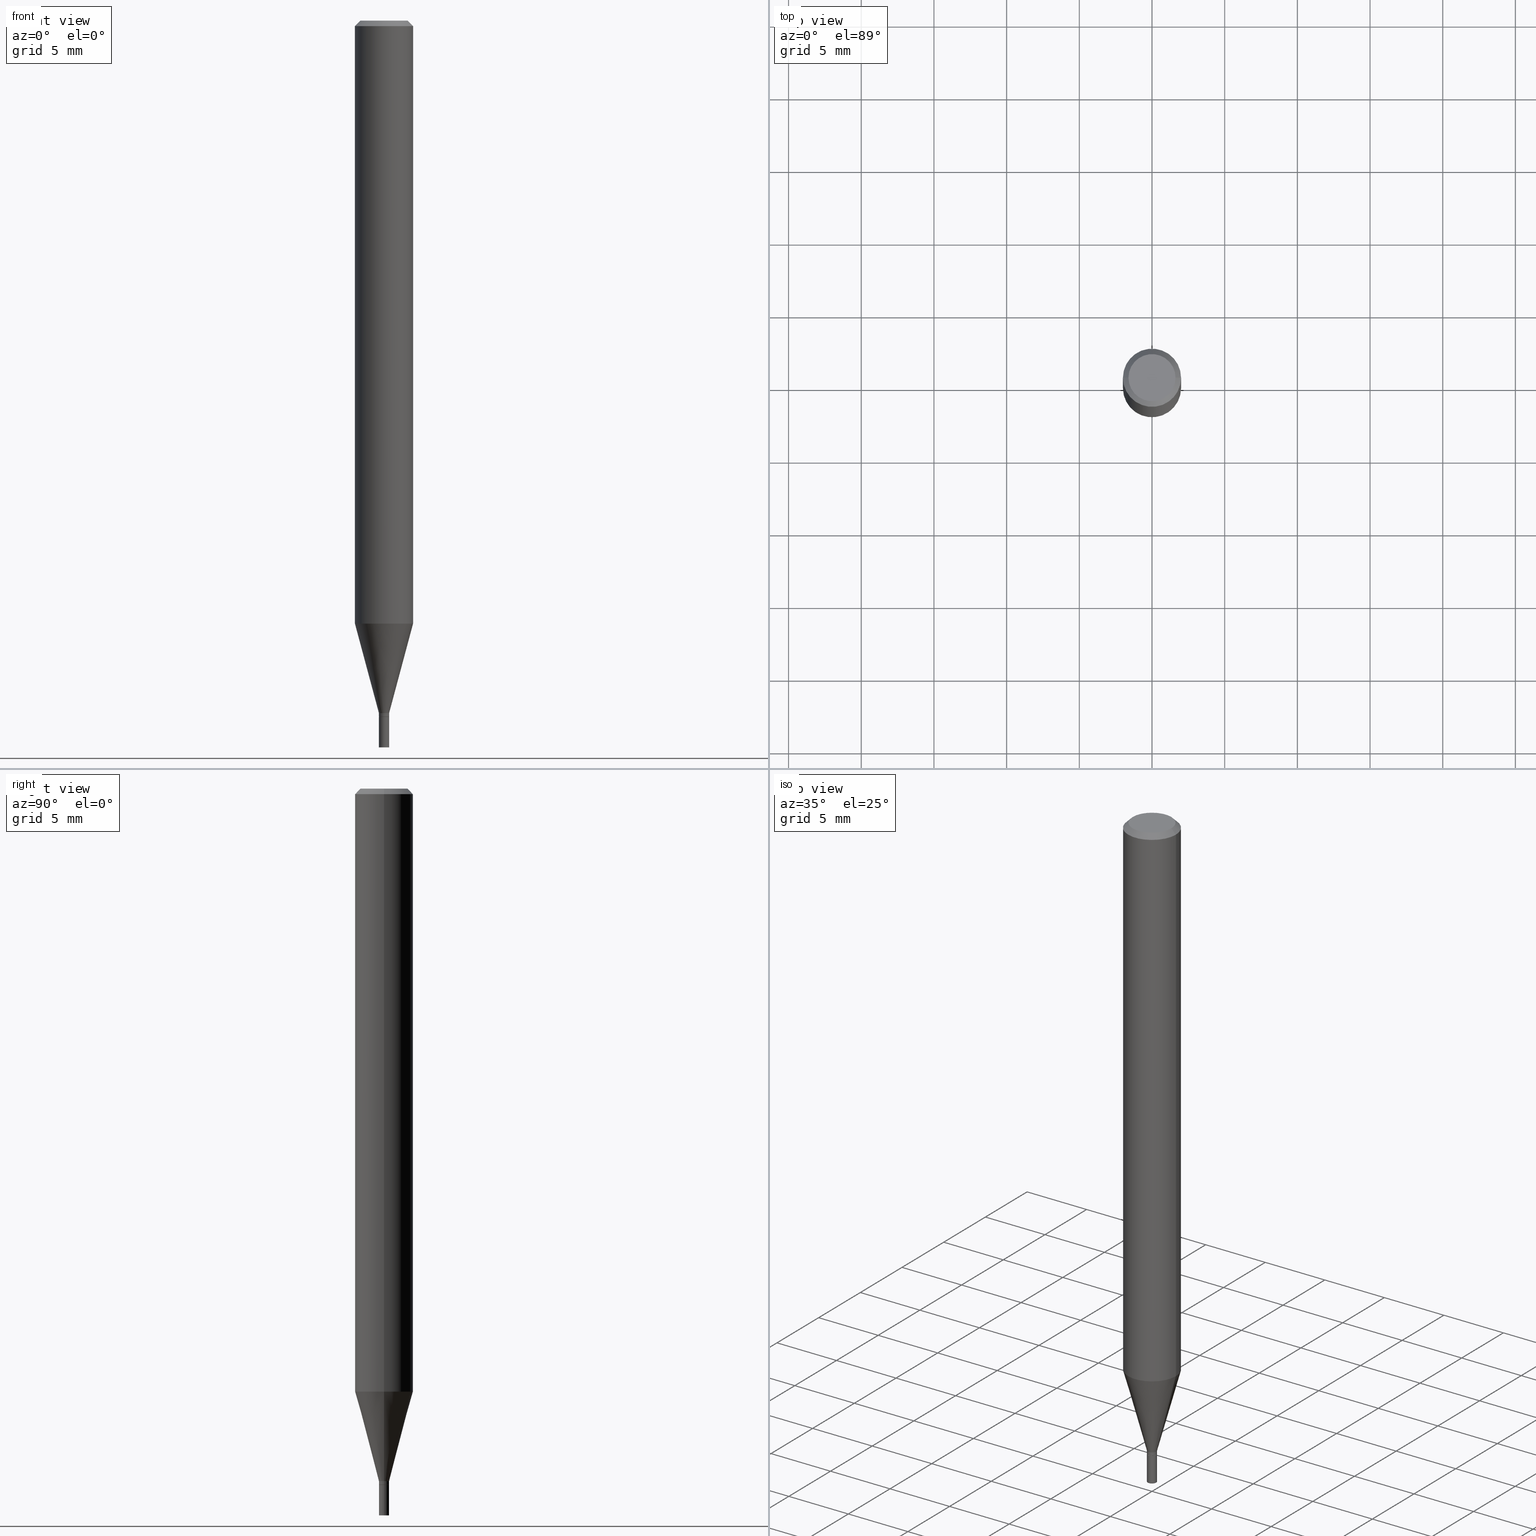
[diagram: canonical four-view strip — front | top / right | iso, engineering-drawing reading convention]
A machine part, canonical four-view strip (front | top / right | iso — engineering-drawing reading convention). The complete STEP part file that produces these views, byte-faithful:
ISO-10303-21;
HEADER;
FILE_DESCRIPTION (( 'STEP AP203' ),
    '1' );
FILE_NAME ('01880.STEP',
    '2024-03-20T02:21:31',
    ( '' ),
    ( '' ),
    'SwSTEP 2.0',
    'SolidWorks 2023',
    '' );
FILE_SCHEMA (( 'CONFIG_CONTROL_DESIGN' ));
ENDSEC;

DATA;
#1 = LINE ( 'NONE', #44, #79 ) ;
#2 = EDGE_CURVE ( 'NONE', #227, #211, #256, .T. ) ;
#3 = DATE_AND_TIME ( #76, #451 ) ;
#4 = CARTESIAN_POINT ( 'NONE',  ( 0.07875000000000000056, -6.251858007389948925E-15, -1.633103300048402540 ) ) ;
#5 = DATE_AND_TIME ( #145, #450 ) ;
#6 = FACE_OUTER_BOUND ( 'NONE', #106, .T. ) ;
#7 = PERSON_AND_ORGANIZATION_ROLE ( 'creator' ) ;
#8 = EDGE_CURVE ( 'NONE', #281, #215, #100, .T. ) ;
#9 = DIRECTION ( 'NONE',  ( -2.445468806185136877E-29, 3.491481338843145188E-15, 1.000000000000000000 ) ) ;
#10 = CONICAL_SURFACE ( 'NONE', #69, 0.01330000000000000106, 0.7853981633974718157 ) ;
#11 = APPROVAL_PERSON_ORGANIZATION ( #37, #298, #292 ) ;
#12 = EDGE_CURVE ( 'NONE', #104, #66, #245, .T. ) ;
#13 = DIRECTION ( 'NONE',  ( 1.000000000000000000, -6.982962677686266711E-15, 0.000000000000000000 ) ) ;
#14 = DIRECTION ( 'NONE',  ( 1.000000000000000000, -6.982962677686274599E-15, 0.000000000000000000 ) ) ;
#15 = CARTESIAN_POINT ( 'NONE',  ( 0.06375000000000000111, -5.149965923825455224E-16, -1.739639682307599153E-16 ) ) ;
#16 = CIRCLE ( 'NONE', #31, 0.01379999999999999977 ) ;
#17 = FACE_OUTER_BOUND ( 'NONE', #320, .T. ) ;
#18 = CARTESIAN_POINT ( 'NONE',  ( 0.01380000000000019753, -9.636488495207185342E-17, 6.729123950598487607E-31 ) ) ;
#19 = EDGE_CURVE ( 'NONE', #68, #347, #266, .T. ) ;
#20 = DIRECTION ( 'NONE',  ( -2.438088387897960049E-29, 3.491481338843145188E-15, 1.000000000000000000 ) ) ;
#21 = AXIS2_PLACEMENT_3D ( 'NONE', #143, #38, #291 ) ;
#22 = DIRECTION ( 'NONE',  ( 0.7071067811865642261, -2.468850131082431399E-15, 0.7071067811865309194 ) ) ;
#23 = AXIS2_PLACEMENT_3D ( 'NONE', #65, #67, #420 ) ;
#24 = ORIENTED_EDGE ( 'NONE', *, *, #344, .F. ) ;
#25 = DIRECTION ( 'NONE',  ( 1.000000000000000000, -6.982962677686234367E-15, 0.000000000000000000 ) ) ;
#26 = ORIENTED_EDGE ( 'NONE', *, *, #444, .T. ) ;
#27 = CARTESIAN_POINT ( 'NONE',  ( 3.668203209277705088E-31, -5.237222008264718399E-17, -0.01499999999999999944 ) ) ;
#28 = VERTEX_POINT ( 'NONE', #399 ) ;
#29 = PRODUCT_DEFINITION ( 'UNKNOWN', '', #367, #462 ) ;
#30 = CARTESIAN_POINT ( 'NONE',  ( 4.611665074703931819E-29, -6.584235508790405551E-15, -1.885800000000000365 ) ) ;
#31 = AXIS2_PLACEMENT_3D ( 'NONE', #163, #303, #448 ) ;
#32 = ORIENTED_EDGE ( 'NONE', *, *, #222, .T. ) ;
#33 = PERSON_AND_ORGANIZATION ( #287, #195 ) ;
#34 = ORIENTED_EDGE ( 'NONE', *, *, #80, .T. ) ;
#35 = DATE_AND_TIME ( #324, #193 ) ;
#36 = DIRECTION ( 'NONE',  ( 1.000000000000000000, -6.982962677686261977E-15, 0.000000000000000000 ) ) ;
#37 = PERSON_AND_ORGANIZATION ( #287, #195 ) ;
#38 = DIRECTION ( 'NONE',  ( -2.445468806185136597E-29, 3.491481338843145583E-15, 1.000000000000000000 ) ) ;
#39 = CIRCLE ( 'NONE', #296, 0.01380000000000019926 ) ;
#40 = PERSON_AND_ORGANIZATION_ROLE ( 'creator' ) ;
#41 = DIRECTION ( 'NONE',  ( 1.000000000000000000, -6.982962677686267499E-15, 4.876176775795936353E-29 ) ) ;
#42 = VERTEX_POINT ( 'NONE', #111 ) ;
#43 = PERSON_AND_ORGANIZATION_ROLE ( 'design_owner' ) ;
#44 = CARTESIAN_POINT ( 'NONE',  ( -0.01379999999999999977, 9.805489753489382399E-17, -6.788130424551770621E-31 ) ) ;
#45 = DIRECTION ( 'NONE',  ( -2.445468806185136597E-29, 3.491481338843145583E-15, 1.000000000000000000 ) ) ;
#46 = SECURITY_CLASSIFICATION ( '', '', #388 ) ;
#47 = CC_DESIGN_APPROVAL ( #402, ( #29 ) ) ;
#48 = ADVANCED_FACE ( 'NONE', ( #6 ), #365, .F. ) ;
#49 = DIRECTION ( 'NONE',  ( 2.445468806185136597E-29, -3.491481338843145583E-15, -1.000000000000000000 ) ) ;
#50 = DIRECTION ( 'NONE',  ( -2.445468806185136597E-29, 3.491481338843145583E-15, 1.000000000000000000 ) ) ;
#51 = CC_DESIGN_PERSON_AND_ORGANIZATION_ASSIGNMENT ( #33, #108, ( #46 ) ) ;
#52 = DIRECTION ( 'NONE',  ( -2.445468806185136597E-29, 3.491481338843145583E-15, 1.000000000000000000 ) ) ;
#53 = CC_DESIGN_SECURITY_CLASSIFICATION ( #46, ( #367 ) ) ;
#54 = EDGE_CURVE ( 'NONE', #438, #141, #1, .T. ) ;
#55 = CONICAL_SURFACE ( 'NONE', #200, 0.01330000000000000106, 0.7853981633974718157 ) ;
#56 = CARTESIAN_POINT ( 'NONE',  ( 4.586476746000223920E-29, -6.548273251000319422E-15, -1.875499999999999945 ) ) ;
#57 = PRODUCT ( '01880', '01880', '', ( #354 ) ) ;
#58 = DIRECTION ( 'NONE',  ( -2.445468806185136597E-29, 3.491481338843145583E-15, 1.000000000000000000 ) ) ;
#59 = ORIENTED_EDGE ( 'NONE', *, *, #97, .T. ) ;
#60 = DIRECTION ( 'NONE',  ( 1.000000000000000000, -6.982962677686266711E-15, 0.000000000000000000 ) ) ;
#61 = EDGE_LOOP ( 'NONE', ( #457, #258, #349, #119 ) ) ;
#62 = VECTOR ( 'NONE', #229, 39.37007874015748143 ) ;
#63 = EDGE_CURVE ( 'NONE', #251, #42, #437, .T. ) ;
#64 = EDGE_LOOP ( 'NONE', ( #418, #277 ) ) ;
#65 = CARTESIAN_POINT ( 'NONE',  ( 4.586476746000223920E-29, -6.548273251000319422E-15, -1.875499999999999945 ) ) ;
#66 = VERTEX_POINT ( 'NONE', #431 ) ;
#67 = DIRECTION ( 'NONE',  ( -2.445468806185136597E-29, 3.491481338843145583E-15, 1.000000000000000000 ) ) ;
#68 = VERTEX_POINT ( 'NONE', #4 ) ;
#69 = AXIS2_PLACEMENT_3D ( 'NONE', #243, #348, #380 ) ;
#70 = PERSON_AND_ORGANIZATION ( #287, #195 ) ;
#71 = LOCAL_TIME ( 22, 21, 31.00000000000000000, #432 ) ;
#72 = ORIENTED_EDGE ( 'NONE', *, *, #222, .F. ) ;
#73 = CIRCLE ( 'NONE', #330, 0.07875000000000000056 ) ;
#74 = CARTESIAN_POINT ( 'NONE',  ( 0.000000000000000000, 0.000000000000000000, 0.000000000000000000 ) ) ;
#75 = CARTESIAN_POINT ( 'NONE',  ( 0.01379999999999999977, -9.636488495207048524E-17, 6.729123950598392144E-31 ) ) ;
#76 = CALENDAR_DATE ( 2024, 19, 3 ) ;
#77 = CARTESIAN_POINT ( 'NONE',  ( 4.451638707024993845E-16, 0.06375000000000000111, -3.095639194666321891E-16 ) ) ;
#78 = CYLINDRICAL_SURFACE ( 'NONE', #419, 0.01380000000000019753 ) ;
#79 = VECTOR ( 'NONE', #9, 39.37007874015748143 ) ;
#80 = EDGE_CURVE ( 'NONE', #347, #68, #160, .T. ) ;
#81 = CARTESIAN_POINT ( 'NONE',  ( -0.07875000000000000056, 5.595524044110789003E-16, -3.873661383575737792E-30 ) ) ;
#82 = ADVANCED_BREP_SHAPE_REPRESENTATION ( '01880', ( #129, #443, #110 ), #130 ) ;
#83 = ORIENTED_EDGE ( 'NONE', *, *, #213, .F. ) ;
#84 = CARTESIAN_POINT ( 'NONE',  ( 3.668203209277705088E-31, -5.237222008264718399E-17, -0.01499999999999999944 ) ) ;
#85 = CC_DESIGN_PERSON_AND_ORGANIZATION_ASSIGNMENT ( #284, #40, ( #367 ) ) ;
#86 = CARTESIAN_POINT ( 'NONE',  ( -0.01380000000000019926, -6.450218353465424562E-15, -1.875499999999999945 ) ) ;
#87 = CYLINDRICAL_SURFACE ( 'NONE', #401, 0.01380000000000019753 ) ;
#88 = ORIENTED_EDGE ( 'NONE', *, *, #63, .T. ) ;
#89 = DIRECTION ( 'NONE',  ( 1.000000000000000000, -6.982962677686234367E-15, 0.000000000000000000 ) ) ;
#90 = ADVANCED_FACE ( 'NONE', ( #185 ), #327, .T. ) ;
#91 = AXIS2_PLACEMENT_3D ( 'NONE', #334, #441, #89 ) ;
#92 = AXIS2_PLACEMENT_3D ( 'NONE', #210, #58, #25 ) ;
#93 = LINE ( 'NONE', #331, #226 ) ;
#94 = CC_DESIGN_PERSON_AND_ORGANIZATION_ASSIGNMENT ( #394, #154, ( #367 ) ) ;
#95 = FACE_OUTER_BOUND ( 'NONE', #285, .T. ) ;
#96 = VERTEX_POINT ( 'NONE', #435 ) ;
#97 = EDGE_CURVE ( 'NONE', #251, #96, #433, .T. ) ;
#98 = CARTESIAN_POINT ( 'NONE',  ( 3.668203209277705088E-31, -5.237222008264718399E-17, -0.01499999999999999944 ) ) ;
#99 = ORIENTED_EDGE ( 'NONE', *, *, #192, .F. ) ;
#100 = CIRCLE ( 'NONE', #175, 0.06375000000000000111 ) ;
#101 = CARTESIAN_POINT ( 'NONE',  ( 0.01330000000000000106, -6.677108912403632696E-15, -1.885800000000000365 ) ) ;
#102 = ORIENTED_EDGE ( 'NONE', *, *, #192, .T. ) ;
#103 = CARTESIAN_POINT ( 'NONE',  ( -0.07875000000000000056, -5.142397292111077566E-15, -1.633103300048402540 ) ) ;
#104 = VERTEX_POINT ( 'NONE', #114 ) ;
#105 = DIRECTION ( 'NONE',  ( -2.445468806185136597E-29, 3.491481338843145583E-15, 1.000000000000000000 ) ) ;
#106 = EDGE_LOOP ( 'NONE', ( #316, #249 ) ) ;
#107 = ADVANCED_FACE ( 'NONE', ( #395 ), #78, .T. ) ;
#108 = PERSON_AND_ORGANIZATION_ROLE ( 'classification_officer' ) ;
#109 = DIRECTION ( 'NONE',  ( 2.438088387897960049E-29, -3.491481338843145188E-15, -1.000000000000000000 ) ) ;
#110 = AXIS2_PLACEMENT_3D ( 'NONE', #74, #228, #321 ) ;
#111 = CARTESIAN_POINT ( 'NONE',  ( 0.01380000000000019753, -6.678854653073054988E-15, -1.885300000000000198 ) ) ;
#112 = CALENDAR_DATE ( 2024, 19, 3 ) ;
#113 = EDGE_CURVE ( 'NONE', #347, #104, #262, .T. ) ;
#114 = CARTESIAN_POINT ( 'NONE',  ( -0.07875000000000000056, -2.317608553891323119E-15, -0.01499999999999999944 ) ) ;
#115 = COORDINATED_UNIVERSAL_TIME_OFFSET ( 5, 0, .BEHIND. ) ;
#116 = DIRECTION ( 'NONE',  ( 1.000000000000000000, -6.982962677686265922E-15, 4.876176775795935793E-29 ) ) ;
#117 = VECTOR ( 'NONE', #268, 39.37007874015748143 ) ;
#118 = CONICAL_SURFACE ( 'NONE', #23, 0.01380000000000019926, 0.2617993877991499074 ) ;
#119 = ORIENTED_EDGE ( 'NONE', *, *, #444, .F. ) ;
#120 = CARTESIAN_POINT ( 'NONE',  ( 4.586476746000223920E-29, -6.548273251000319422E-15, -1.875499999999999945 ) ) ;
#121 = EDGE_CURVE ( 'NONE', #42, #386, #191, .T. ) ;
#122 = FACE_OUTER_BOUND ( 'NONE', #422, .T. ) ;
#123 = CARTESIAN_POINT ( 'NONE',  ( -0.01380000000000019753, -6.484434870586088399E-15, -1.885300000000000198 ) ) ;
#124 = SHAPE_DEFINITION_REPRESENTATION ( #126, #82 ) ;
#125 = CARTESIAN_POINT ( 'NONE',  ( 4.611665074703931819E-29, -6.584235508790405551E-15, -1.885800000000000365 ) ) ;
#126 = PRODUCT_DEFINITION_SHAPE ( 'NONE', 'NONE',  #29 ) ;
#127 = FACE_OUTER_BOUND ( 'NONE', #464, .T. ) ;
#128 = VECTOR ( 'NONE', #153, 39.37007874015748143 ) ;
#129 = MANIFOLD_SOLID_BREP ( 'Body-Move/Copy2[1]', #317 ) ;
#130 =( GEOMETRIC_REPRESENTATION_CONTEXT ( 3 ) GLOBAL_UNCERTAINTY_ASSIGNED_CONTEXT ( ( #425 ) ) GLOBAL_UNIT_ASSIGNED_CONTEXT ( ( #180, #430, #259 ) ) REPRESENTATION_CONTEXT ( 'NONE', 'WORKASPACE' ) );
#131 = DIRECTION ( 'NONE',  ( -2.445468806185136597E-29, 3.491481338843145583E-15, 1.000000000000000000 ) ) ;
#132 = ORIENTED_EDGE ( 'NONE', *, *, #183, .T. ) ;
#133 = DIRECTION ( 'NONE',  ( -2.445468806185136597E-29, 3.491481338843145583E-15, 1.000000000000000000 ) ) ;
#134 = ORIENTED_EDGE ( 'NONE', *, *, #19, .F. ) ;
#135 = CARTESIAN_POINT ( 'NONE',  ( 0.000000000000000000, 0.000000000000000000, 0.000000000000000000 ) ) ;
#136 = ORIENTED_EDGE ( 'NONE', *, *, #183, .F. ) ;
#137 = VECTOR ( 'NONE', #164, 39.37007874015748854 ) ;
#138 = FACE_OUTER_BOUND ( 'NONE', #428, .T. ) ;
#139 = ORIENTED_EDGE ( 'NONE', *, *, #344, .T. ) ;
#140 = PLANE ( 'NONE',  #374 ) ;
#141 = VERTEX_POINT ( 'NONE', #232 ) ;
#142 = PERSON_AND_ORGANIZATION ( #287, #195 ) ;
#143 = CARTESIAN_POINT ( 'NONE',  ( 4.610442340300838457E-29, -6.582489768120983258E-15, -1.885300000000000198 ) ) ;
#144 = AXIS2_PLACEMENT_3D ( 'NONE', #264, #156, #13 ) ;
#145 = CALENDAR_DATE ( 2024, 19, 3 ) ;
#146 = DIRECTION ( 'NONE',  ( -2.445468806185136597E-29, 3.491481338843145583E-15, 1.000000000000000000 ) ) ;
#147 = CIRCLE ( 'NONE', #92, 0.01379999999999999977 ) ;
#148 = EDGE_CURVE ( 'NONE', #438, #227, #278, .T. ) ;
#149 = APPROVAL_STATUS ( 'not_yet_approved' ) ;
#150 = CARTESIAN_POINT ( 'NONE',  ( 0.000000000000000000, 0.000000000000000000, 0.000000000000000000 ) ) ;
#151 = CC_DESIGN_PERSON_AND_ORGANIZATION_ASSIGNMENT ( #70, #7, ( #29 ) ) ;
#152 = APPLICATION_PROTOCOL_DEFINITION ( 'international standard', 'config_control_design', 1994, #219 ) ;
#153 = DIRECTION ( 'NONE',  ( -2.445468806185136877E-29, 3.491481338843145188E-15, 1.000000000000000000 ) ) ;
#154 = PERSON_AND_ORGANIZATION_ROLE ( 'design_supplier' ) ;
#155 = DIRECTION ( 'NONE',  ( 1.000000000000000000, -6.982962677686265922E-15, 4.852736867747365646E-29 ) ) ;
#156 = DIRECTION ( 'NONE',  ( -2.445468806185136597E-29, 3.491481338843145583E-15, 1.000000000000000000 ) ) ;
#157 = LINE ( 'NONE', #86, #137 ) ;
#158 = PRODUCT_RELATED_PRODUCT_CATEGORY ( 'detail', '', ( #57 ) ) ;
#159 = CARTESIAN_POINT ( 'NONE',  ( 0.01379999999999999977, -6.969345900464801860E-15, -1.968500000000000139 ) ) ;
#160 = CIRCLE ( 'NONE', #288, 0.07875000000000000056 ) ;
#161 = EDGE_CURVE ( 'NONE', #215, #66, #93, .T. ) ;
#162 = EDGE_CURVE ( 'NONE', #227, #438, #16, .T. ) ;
#163 = CARTESIAN_POINT ( 'NONE',  ( 4.813905344975441835E-29, -6.872981015512731707E-15, -1.968500000000000139 ) ) ;
#164 = DIRECTION ( 'NONE',  ( -0.2588190451025211836, 5.211531920934547886E-15, 0.9659258262890679791 ) ) ;
#165 = LINE ( 'NONE', #272, #261 ) ;
#166 = APPLICATION_CONTEXT ( 'configuration controlled 3d designs of mechanical parts and assemblies' ) ;
#167 = VECTOR ( 'NONE', #333, 39.37007874015748143 ) ;
#168 = APPROVAL_PERSON_ORGANIZATION ( #465, #314, #295 ) ;
#169 = CARTESIAN_POINT ( 'NONE',  ( 4.586476746000223920E-29, -6.548273251000319422E-15, -1.875499999999999945 ) ) ;
#170 = EDGE_LOOP ( 'NONE', ( #32, #59, #188, #357 ) ) ;
#171 =( LENGTH_UNIT ( ) NAMED_UNIT ( * ) SI_UNIT ( $, .METRE. ) );
#172 = ORIENTED_EDGE ( 'NONE', *, *, #113, .F. ) ;
#173 = DIRECTION ( 'NONE',  ( 2.445468806185136597E-29, -3.491481338843145583E-15, -1.000000000000000000 ) ) ;
#174 = ORIENTED_EDGE ( 'NONE', *, *, #54, .T. ) ;
#175 = AXIS2_PLACEMENT_3D ( 'NONE', #322, #391, #155 ) ;
#176 = EDGE_CURVE ( 'NONE', #386, #96, #39, .T. ) ;
#177 = DIRECTION ( 'NONE',  ( -2.445468806185136597E-29, 3.491481338843145583E-15, 1.000000000000000000 ) ) ;
#178 = ORIENTED_EDGE ( 'NONE', *, *, #436, .F. ) ;
#179 = CC_DESIGN_DATE_AND_TIME_ASSIGNMENT ( #250, #390, ( #29 ) ) ;
#180 =( CONVERSION_BASED_UNIT ( 'INCH', #217 ) LENGTH_UNIT ( ) NAMED_UNIT ( #416 ) );
#181 = ORIENTED_EDGE ( 'NONE', *, *, #213, .T. ) ;
#182 = DIRECTION ( 'NONE',  ( -1.000000000000000000, 6.982962677686265922E-15, -4.876176775795935793E-29 ) ) ;
#183 = EDGE_CURVE ( 'NONE', #211, #141, #336, .T. ) ;
#184 = AXIS2_PLACEMENT_3D ( 'NONE', #77, #109, #182 ) ;
#185 = FACE_OUTER_BOUND ( 'NONE', #61, .T. ) ;
#186 = PERSON_AND_ORGANIZATION ( #287, #195 ) ;
#187 = CARTESIAN_POINT ( 'NONE',  ( 0.000000000000000000, 0.000000000000000000, 0.000000000000000000 ) ) ;
#188 = ORIENTED_EDGE ( 'NONE', *, *, #176, .F. ) ;
#189 = EDGE_CURVE ( 'NONE', #96, #386, #409, .T. ) ;
#190 = APPROVAL_DATE_TIME ( #35, #402 ) ;
#191 = LINE ( 'NONE', #18, #117 ) ;
#192 = EDGE_CURVE ( 'NONE', #28, #323, #366, .T. ) ;
#193 = LOCAL_TIME ( 22, 21, 31.00000000000000000, #254 ) ;
#194 = DIRECTION ( 'NONE',  ( 0.7071067811865516806, -7.319954787623270245E-15, -0.7071067811865433539 ) ) ;
#195 = ORGANIZATION ( 'UNSPECIFIED', 'UNSPECIFIED', '' ) ;
#196 = CARTESIAN_POINT ( 'NONE',  ( 0.07875000000000000056, -5.499083108677934443E-16, 3.839989210939299016E-30 ) ) ;
#197 = DIRECTION ( 'NONE',  ( 1.000000000000000000, -6.982962677686275388E-15, 0.000000000000000000 ) ) ;
#198 = ADVANCED_FACE ( 'NONE', ( #122 ), #87, .T. ) ;
#199 = CARTESIAN_POINT ( 'NONE',  ( 4.813905344975441835E-29, -6.872981015512731707E-15, -1.968500000000000139 ) ) ;
#200 = AXIS2_PLACEMENT_3D ( 'NONE', #125, #373, #338 ) ;
#201 = DIRECTION ( 'NONE',  ( 1.000000000000000000, -6.982962677686274599E-15, 0.000000000000000000 ) ) ;
#202 = DIRECTION ( 'NONE',  ( 1.000000000000000000, -6.982962677686265922E-15, 4.852736867747365646E-29 ) ) ;
#203 = ORIENTED_EDGE ( 'NONE', *, *, #436, .T. ) ;
#204 = DIRECTION ( 'NONE',  ( 1.000000000000000000, -6.982962677686267499E-15, 4.876176775795936353E-29 ) ) ;
#205 = ORIENTED_EDGE ( 'NONE', *, *, #421, .F. ) ;
#206 = CIRCLE ( 'NONE', #342, 0.06375000000000000111 ) ;
#207 = CARTESIAN_POINT ( 'NONE',  ( 4.611665074703931819E-29, -6.584235508790405551E-15, -1.885800000000000365 ) ) ;
#208 = ADVANCED_FACE ( 'NONE', ( #335 ), #404, .T. ) ;
#209 = ORIENTED_EDGE ( 'NONE', *, *, #113, .T. ) ;
#210 = CARTESIAN_POINT ( 'NONE',  ( 4.611665074703931259E-29, -6.584235508790404762E-15, -1.885800000000000143 ) ) ;
#211 = VERTEX_POINT ( 'NONE', #369 ) ;
#212 = EDGE_CURVE ( 'NONE', #68, #66, #240, .T. ) ;
#213 = EDGE_CURVE ( 'NONE', #96, #347, #157, .T. ) ;
#214 = DIRECTION ( 'NONE',  ( 1.000000000000000000, -6.982962677686265922E-15, 4.876176775795935793E-29 ) ) ;
#215 = VERTEX_POINT ( 'NONE', #15 ) ;
#216 = AXIS2_PLACEMENT_3D ( 'NONE', #120, #52, #201 ) ;
#217 = LENGTH_MEASURE_WITH_UNIT ( LENGTH_MEASURE( 0.02539999999999999897 ), #171 );
#218 = ORIENTED_EDGE ( 'NONE', *, *, #387, .T. ) ;
#219 = APPLICATION_CONTEXT ( 'configuration controlled 3d designs of mechanical parts and assemblies' ) ;
#220 = COORDINATED_UNIVERSAL_TIME_OFFSET ( 5, 0, .BEHIND. ) ;
#221 = ADVANCED_FACE ( 'NONE', ( #235 ), #301, .F. ) ;
#222 = EDGE_CURVE ( 'NONE', #42, #251, #427, .T. ) ;
#223 = ORIENTED_EDGE ( 'NONE', *, *, #12, .F. ) ;
#224 = CARTESIAN_POINT ( 'NONE',  ( 3.993703177546373766E-29, -5.701949696522156368E-15, -1.633103300048402540 ) ) ;
#225 = CC_DESIGN_APPROVAL ( #298, ( #46 ) ) ;
#226 = VECTOR ( 'NONE', #194, 39.37007874015748143 ) ;
#227 = VERTEX_POINT ( 'NONE', #159 ) ;
#228 = DIRECTION ( 'NONE',  ( 0.000000000000000000, 0.000000000000000000, 1.000000000000000000 ) ) ;
#229 = DIRECTION ( 'NONE',  ( -2.445468806185136877E-29, 3.491481338843145188E-15, 1.000000000000000000 ) ) ;
#230 = CARTESIAN_POINT ( 'NONE',  ( 3.668203209277705088E-31, -5.237222008264718399E-17, -0.01499999999999999944 ) ) ;
#231 = VECTOR ( 'NONE', #304, 39.37007874015748854 ) ;
#232 = CARTESIAN_POINT ( 'NONE',  ( -0.01379999999999999977, -6.630553364616674953E-15, -1.885800000000000143 ) ) ;
#233 = CLOSED_SHELL ( 'NONE', ( #107, #311, #332, #360, #337, #447, #326, #208, #48, #372, #458, #198 ) ) ;
#234 = AXIS2_PLACEMENT_3D ( 'NONE', #383, #385, #280 ) ;
#235 = FACE_OUTER_BOUND ( 'NONE', #453, .T. ) ;
#236 = CARTESIAN_POINT ( 'NONE',  ( 0.01380000000000019926, -6.644638135952391152E-15, -1.875499999999999945 ) ) ;
#237 = EDGE_LOOP ( 'NONE', ( #99, #24 ) ) ;
#238 = DIRECTION ( 'NONE',  ( -1.000000000000000000, 6.982962677686265922E-15, 0.000000000000000000 ) ) ;
#239 = EDGE_CURVE ( 'NONE', #281, #104, #410, .T. ) ;
#240 = LINE ( 'NONE', #196, #167 ) ;
#241 = CARTESIAN_POINT ( 'NONE',  ( 0.000000000000000000, 0.000000000000000000, 0.000000000000000000 ) ) ;
#242 = ORIENTED_EDGE ( 'NONE', *, *, #421, .T. ) ;
#243 = CARTESIAN_POINT ( 'NONE',  ( 4.611665074703931819E-29, -6.584235508790405551E-15, -1.885800000000000365 ) ) ;
#244 = EDGE_LOOP ( 'NONE', ( #378, #307, #310, #329 ) ) ;
#245 = CIRCLE ( 'NONE', #352, 0.07875000000000000056 ) ;
#246 = CYLINDRICAL_SURFACE ( 'NONE', #461, 0.01379999999999999977 ) ;
#247 = ORIENTED_EDGE ( 'NONE', *, *, #212, .T. ) ;
#248 = CYLINDRICAL_SURFACE ( 'NONE', #270, 0.07875000000000000056 ) ;
#249 = ORIENTED_EDGE ( 'NONE', *, *, #361, .T. ) ;
#250 = DATE_AND_TIME ( #397, #308 ) ;
#251 = VERTEX_POINT ( 'NONE', #123 ) ;
#252 = CC_DESIGN_APPROVAL ( #314, ( #367 ) ) ;
#253 = APPROVAL_PERSON_ORGANIZATION ( #186, #402, #426 ) ;
#254 = COORDINATED_UNIVERSAL_TIME_OFFSET ( 5, 0, .BEHIND. ) ;
#255 = DIRECTION ( 'NONE',  ( 1.000000000000000000, -6.982962677686261977E-15, 0.000000000000000000 ) ) ;
#256 = LINE ( 'NONE', #75, #260 ) ;
#257 = DATE_AND_TIME ( #112, #71 ) ;
#258 = ORIENTED_EDGE ( 'NONE', *, *, #148, .T. ) ;
#259 =( NAMED_UNIT ( * ) SI_UNIT ( $, .STERADIAN. ) SOLID_ANGLE_UNIT ( ) );
#260 = VECTOR ( 'NONE', #325, 39.37007874015748143 ) ;
#261 = VECTOR ( 'NONE', #417, 39.37007874015748143 ) ;
#262 = LINE ( 'NONE', #81, #62 ) ;
#263 = CARTESIAN_POINT ( 'NONE',  ( 3.993703177546373766E-29, -5.701949696522156368E-15, -1.633103300048402540 ) ) ;
#264 = CARTESIAN_POINT ( 'NONE',  ( 4.611665074703931819E-29, -6.584235508790405551E-15, -1.885800000000000365 ) ) ;
#265 = DIRECTION ( 'NONE',  ( -1.000000000000000000, 6.982962677686265922E-15, -4.876176775795935793E-29 ) ) ;
#266 = CIRCLE ( 'NONE', #345, 0.07875000000000000056 ) ;
#267 = DIRECTION ( 'NONE',  ( 2.438088387897960049E-29, -3.491481338843145188E-15, -1.000000000000000000 ) ) ;
#268 = DIRECTION ( 'NONE',  ( -2.445468806185136877E-29, 3.491481338843145188E-15, 1.000000000000000000 ) ) ;
#269 = CARTESIAN_POINT ( 'NONE',  ( 0.000000000000000000, 0.000000000000000000, 0.000000000000000000 ) ) ;
#270 = AXIS2_PLACEMENT_3D ( 'NONE', #135, #312, #319 ) ;
#271 = CIRCLE ( 'NONE', #439, 0.01330000000000000106 ) ;
#272 = CARTESIAN_POINT ( 'NONE',  ( -0.01330000000000000106, -6.489733324934312379E-15, -1.885800000000000365 ) ) ;
#273 = ORIENTED_EDGE ( 'NONE', *, *, #387, .F. ) ;
#274 = DIRECTION ( 'NONE',  ( 1.000000000000000000, -6.982962677686274599E-15, 0.000000000000000000 ) ) ;
#275 = ORIENTED_EDGE ( 'NONE', *, *, #176, .T. ) ;
#276 = DIRECTION ( 'NONE',  ( -2.445468806185136597E-29, 3.491481338843145583E-15, 1.000000000000000000 ) ) ;
#277 = ORIENTED_EDGE ( 'NONE', *, *, #148, .F. ) ;
#278 = CIRCLE ( 'NONE', #382, 0.01379999999999999977 ) ;
#279 = EDGE_CURVE ( 'NONE', #386, #68, #406, .T. ) ;
#280 = DIRECTION ( 'NONE',  ( 1.000000000000000000, -6.982962677686265922E-15, 4.876176775795935232E-29 ) ) ;
#281 = VERTEX_POINT ( 'NONE', #370 ) ;
#282 = DIRECTION ( 'NONE',  ( 1.000000000000000000, -6.982962677686265922E-15, 0.000000000000000000 ) ) ;
#283 = EDGE_LOOP ( 'NONE', ( #205, #139, #203, #413 ) ) ;
#284 = PERSON_AND_ORGANIZATION ( #287, #195 ) ;
#285 = EDGE_LOOP ( 'NONE', ( #363, #209, #273, #415 ) ) ;
#286 = CONICAL_SURFACE ( 'NONE', #318, 0.07875000000000000056, 0.7853981633974541632 ) ;
#287 = PERSON ( 'UNSPECIFIED', 'UNSPECIFIED', 'UNSPECIFIED', ('UNSPECIFIED'), ('UNSPECIFIED'), ('UNSPECIFIED') ) ;
#288 = AXIS2_PLACEMENT_3D ( 'NONE', #224, #359, #255 ) ;
#289 = VECTOR ( 'NONE', #445, 39.37007874015748143 ) ;
#290 = APPROVAL_STATUS ( 'not_yet_approved' ) ;
#291 = DIRECTION ( 'NONE',  ( 1.000000000000000000, -6.982962677686275388E-15, 0.000000000000000000 ) ) ;
#292 = APPROVAL_ROLE ( '' ) ;
#293 = DIRECTION ( 'NONE',  ( -2.445468806185136597E-29, 3.491481338843145583E-15, 1.000000000000000000 ) ) ;
#294 = DIRECTION ( 'NONE',  ( -2.445468806185136597E-29, 3.491481338843145583E-15, 1.000000000000000000 ) ) ;
#295 = APPROVAL_ROLE ( '' ) ;
#296 = AXIS2_PLACEMENT_3D ( 'NONE', #56, #408, #14 ) ;
#297 = AXIS2_PLACEMENT_3D ( 'NONE', #30, #423, #454 ) ;
#298 = APPROVAL ( #149, 'UNSPECIFIED' ) ;
#299 = EDGE_LOOP ( 'NONE', ( #389, #381, #218, #460 ) ) ;
#300 = DIRECTION ( 'NONE',  ( 1.000000000000000000, -6.982962677686265922E-15, 4.876176775795935793E-29 ) ) ;
#301 = PLANE ( 'NONE',  #411 ) ;
#302 = CARTESIAN_POINT ( 'NONE',  ( -0.07875000000000000056, 4.975360907851462665E-16, -0.01499999999999999944 ) ) ;
#303 = DIRECTION ( 'NONE',  ( -2.445468806185136597E-29, 3.491481338843145583E-15, 1.000000000000000000 ) ) ;
#304 = DIRECTION ( 'NONE',  ( 0.2588190451025211836, 1.565188264969622559E-15, 0.9659258262890679791 ) ) ;
#305 = PLANE ( 'NONE',  #297 ) ;
#306 = CONICAL_SURFACE ( 'NONE', #429, 0.01380000000000019926, 0.2617993877991499074 ) ;
#307 = ORIENTED_EDGE ( 'NONE', *, *, #8, .F. ) ;
#308 = LOCAL_TIME ( 22, 21, 31.00000000000000000, #115 ) ;
#309 = FACE_OUTER_BOUND ( 'NONE', #299, .T. ) ;
#310 = ORIENTED_EDGE ( 'NONE', *, *, #239, .T. ) ;
#311 = ADVANCED_FACE ( 'NONE', ( #17 ), #55, .T. ) ;
#312 = DIRECTION ( 'NONE',  ( -2.445468806185136597E-29, 3.491481338843145583E-15, 1.000000000000000000 ) ) ;
#313 = ORIENTED_EDGE ( 'NONE', *, *, #279, .F. ) ;
#314 = APPROVAL ( #290, 'UNSPECIFIED' ) ;
#315 = DIRECTION ( 'NONE',  ( -1.000000000000000000, 6.982962677686265922E-15, 0.000000000000000000 ) ) ;
#316 = ORIENTED_EDGE ( 'NONE', *, *, #8, .T. ) ;
#317 = CLOSED_SHELL ( 'NONE', ( #407, #371, #90, #221 ) ) ;
#318 = AXIS2_PLACEMENT_3D ( 'NONE', #27, #173, #315 ) ;
#319 = DIRECTION ( 'NONE',  ( 1.000000000000000000, -6.982962677686265922E-15, 4.876176775795935232E-29 ) ) ;
#320 = EDGE_LOOP ( 'NONE', ( #102, #242, #72, #178 ) ) ;
#321 = DIRECTION ( 'NONE',  ( 1.000000000000000000, 0.000000000000000000, 0.000000000000000000 ) ) ;
#322 = CARTESIAN_POINT ( 'NONE',  ( 4.254234577085137213E-45, -6.073919487088118039E-31, -1.739639682307632927E-16 ) ) ;
#323 = VERTEX_POINT ( 'NONE', #449 ) ;
#324 = CALENDAR_DATE ( 2024, 19, 3 ) ;
#325 = DIRECTION ( 'NONE',  ( -2.445468806185136877E-29, 3.491481338843145188E-15, 1.000000000000000000 ) ) ;
#326 = ADVANCED_FACE ( 'NONE', ( #127 ), #452, .T. ) ;
#327 = CYLINDRICAL_SURFACE ( 'NONE', #403, 0.01379999999999999977 ) ;
#328 = COORDINATED_UNIVERSAL_TIME_OFFSET ( 5, 0, .BEHIND. ) ;
#329 = ORIENTED_EDGE ( 'NONE', *, *, #12, .T. ) ;
#330 = AXIS2_PLACEMENT_3D ( 'NONE', #98, #105, #282 ) ;
#331 = CARTESIAN_POINT ( 'NONE',  ( 0.07875000000000000056, -5.926364374071552647E-16, -0.01499999999999999944 ) ) ;
#332 = ADVANCED_FACE ( 'NONE', ( #309 ), #286, .T. ) ;
#333 = DIRECTION ( 'NONE',  ( -2.445468806185136877E-29, 3.491481338843145188E-15, 1.000000000000000000 ) ) ;
#334 = CARTESIAN_POINT ( 'NONE',  ( 4.611665074703931259E-29, -6.584235508790404762E-15, -1.885800000000000143 ) ) ;
#335 = FACE_OUTER_BOUND ( 'NONE', #244, .T. ) ;
#336 = CIRCLE ( 'NONE', #91, 0.01379999999999999977 ) ;
#337 = ADVANCED_FACE ( 'NONE', ( #138 ), #118, .T. ) ;
#338 = DIRECTION ( 'NONE',  ( 1.000000000000000000, -6.982962677686266711E-15, 0.000000000000000000 ) ) ;
#339 = FACE_OUTER_BOUND ( 'NONE', #355, .T. ) ;
#340 = ORIENTED_EDGE ( 'NONE', *, *, #80, .F. ) ;
#341 = LINE ( 'NONE', #101, #346 ) ;
#342 = AXIS2_PLACEMENT_3D ( 'NONE', #463, #276, #202 ) ;
#343 = ORIENTED_EDGE ( 'NONE', *, *, #2, .F. ) ;
#344 = EDGE_CURVE ( 'NONE', #323, #28, #271, .T. ) ;
#345 = AXIS2_PLACEMENT_3D ( 'NONE', #263, #146, #36 ) ;
#346 = VECTOR ( 'NONE', #22, 39.37007874015748143 ) ;
#347 = VERTEX_POINT ( 'NONE', #103 ) ;
#348 = DIRECTION ( 'NONE',  ( -2.445468806185136597E-29, 3.491481338843145583E-15, 1.000000000000000000 ) ) ;
#349 = ORIENTED_EDGE ( 'NONE', *, *, #2, .T. ) ;
#350 = FACE_OUTER_BOUND ( 'NONE', #237, .T. ) ;
#351 = ORIENTED_EDGE ( 'NONE', *, *, #189, .T. ) ;
#352 = AXIS2_PLACEMENT_3D ( 'NONE', #230, #393, #466 ) ;
#353 = AXIS2_PLACEMENT_3D ( 'NONE', #84, #49, #238 ) ;
#354 = MECHANICAL_CONTEXT ( 'NONE', #219, 'mechanical' ) ;
#355 = EDGE_LOOP ( 'NONE', ( #83, #351, #384, #340 ) ) ;
#356 = APPLICATION_PROTOCOL_DEFINITION ( 'international standard', 'config_control_design', 1994, #166 ) ;
#357 = ORIENTED_EDGE ( 'NONE', *, *, #121, .F. ) ;
#358 = DATE_TIME_ROLE ( 'classification_date' ) ;
#359 = DIRECTION ( 'NONE',  ( -2.445468806185136597E-29, 3.491481338843145583E-15, 1.000000000000000000 ) ) ;
#360 = ADVANCED_FACE ( 'NONE', ( #95 ), #248, .T. ) ;
#361 = EDGE_CURVE ( 'NONE', #215, #281, #206, .T. ) ;
#362 = ORIENTED_EDGE ( 'NONE', *, *, #189, .F. ) ;
#363 = ORIENTED_EDGE ( 'NONE', *, *, #19, .T. ) ;
#364 = EDGE_LOOP ( 'NONE', ( #424, #174, #136, #343 ) ) ;
#365 = PLANE ( 'NONE',  #184 ) ;
#366 = CIRCLE ( 'NONE', #144, 0.01330000000000000106 ) ;
#367 = PRODUCT_DEFINITION_FORMATION_WITH_SPECIFIED_SOURCE ( 'ANY', '', #57, .NOT_KNOWN. ) ;
#368 = DIRECTION ( 'NONE',  ( 1.000000000000000000, -6.982962677686234367E-15, 0.000000000000000000 ) ) ;
#369 = CARTESIAN_POINT ( 'NONE',  ( 0.01379999999999999977, -6.680600393742474914E-15, -1.885800000000000143 ) ) ;
#370 = CARTESIAN_POINT ( 'NONE',  ( -0.06375000000000000111, 4.713499807438226283E-16, -1.739639682307664974E-16 ) ) ;
#371 = ADVANCED_FACE ( 'NONE', ( #459 ), #140, .F. ) ;
#372 = ADVANCED_FACE ( 'NONE', ( #350 ), #305, .F. ) ;
#373 = DIRECTION ( 'NONE',  ( -2.445468806185136597E-29, 3.491481338843145583E-15, 1.000000000000000000 ) ) ;
#374 = AXIS2_PLACEMENT_3D ( 'NONE', #377, #20, #214 ) ;
#375 = CC_DESIGN_DATE_AND_TIME_ASSIGNMENT ( #3, #358, ( #46 ) ) ;
#376 = CARTESIAN_POINT ( 'NONE',  ( -0.01379999999999999977, -6.630553364616674953E-15, -1.968500000000000139 ) ) ;
#377 = CARTESIAN_POINT ( 'NONE',  ( 4.848906058769445083E-29, -6.822858001242805551E-15, -1.968500000000000139 ) ) ;
#378 = ORIENTED_EDGE ( 'NONE', *, *, #161, .F. ) ;
#379 = CC_DESIGN_PERSON_AND_ORGANIZATION_ASSIGNMENT ( #142, #43, ( #57 ) ) ;
#380 = DIRECTION ( 'NONE',  ( 1.000000000000000000, -6.982962677686266711E-15, 0.000000000000000000 ) ) ;
#381 = ORIENTED_EDGE ( 'NONE', *, *, #161, .T. ) ;
#382 = AXIS2_PLACEMENT_3D ( 'NONE', #199, #45, #368 ) ;
#383 = CARTESIAN_POINT ( 'NONE',  ( 0.000000000000000000, 0.000000000000000000, 0.000000000000000000 ) ) ;
#384 = ORIENTED_EDGE ( 'NONE', *, *, #279, .T. ) ;
#385 = DIRECTION ( 'NONE',  ( -2.445468806185136597E-29, 3.491481338843145583E-15, 1.000000000000000000 ) ) ;
#386 = VERTEX_POINT ( 'NONE', #456 ) ;
#387 = EDGE_CURVE ( 'NONE', #66, #104, #73, .T. ) ;
#388 = SECURITY_CLASSIFICATION_LEVEL ( 'unclassified' ) ;
#389 = ORIENTED_EDGE ( 'NONE', *, *, #361, .F. ) ;
#390 = DATE_TIME_ROLE ( 'creation_date' ) ;
#391 = DIRECTION ( 'NONE',  ( -2.445468806185136597E-29, 3.491481338843145583E-15, 1.000000000000000000 ) ) ;
#392 = APPROVAL_DATE_TIME ( #5, #314 ) ;
#393 = DIRECTION ( 'NONE',  ( -2.445468806185136597E-29, 3.491481338843145583E-15, 1.000000000000000000 ) ) ;
#394 = PERSON_AND_ORGANIZATION ( #287, #195 ) ;
#395 = FACE_OUTER_BOUND ( 'NONE', #170, .T. ) ;
#396 = AXIS2_PLACEMENT_3D ( 'NONE', #405, #50, #197 ) ;
#397 = CALENDAR_DATE ( 2024, 19, 3 ) ;
#398 = CARTESIAN_POINT ( 'NONE',  ( -0.01380000000000019753, 9.805489753489522915E-17, -6.788130424551866960E-31 ) ) ;
#399 = CARTESIAN_POINT ( 'NONE',  ( 0.01330000000000000106, -6.677108912403632696E-15, -1.885800000000000365 ) ) ;
#400 = DIRECTION ( 'NONE',  ( -2.445468806185136597E-29, 3.491481338843145583E-15, 1.000000000000000000 ) ) ;
#401 = AXIS2_PLACEMENT_3D ( 'NONE', #269, #400, #300 ) ;
#402 = APPROVAL ( #434, 'UNSPECIFIED' ) ;
#403 = AXIS2_PLACEMENT_3D ( 'NONE', #150, #293, #41 ) ;
#404 = CONICAL_SURFACE ( 'NONE', #353, 0.07875000000000000056, 0.7853981633974541632 ) ;
#405 = CARTESIAN_POINT ( 'NONE',  ( 4.610442340300838457E-29, -6.582489768120983258E-15, -1.885300000000000198 ) ) ;
#406 = LINE ( 'NONE', #236, #231 ) ;
#407 = ADVANCED_FACE ( 'NONE', ( #412 ), #246, .T. ) ;
#408 = DIRECTION ( 'NONE',  ( -2.445468806185136597E-29, 3.491481338843145583E-15, 1.000000000000000000 ) ) ;
#409 = CIRCLE ( 'NONE', #216, 0.01380000000000019926 ) ;
#410 = LINE ( 'NONE', #302, #289 ) ;
#411 = AXIS2_PLACEMENT_3D ( 'NONE', #442, #267, #265 ) ;
#412 = FACE_OUTER_BOUND ( 'NONE', #364, .T. ) ;
#413 = ORIENTED_EDGE ( 'NONE', *, *, #63, .F. ) ;
#414 = FACE_OUTER_BOUND ( 'NONE', #283, .T. ) ;
#415 = ORIENTED_EDGE ( 'NONE', *, *, #212, .F. ) ;
#416 = DIMENSIONAL_EXPONENTS ( 1.000000000000000000, 0.000000000000000000, 0.000000000000000000, 0.000000000000000000, 0.000000000000000000, 0.000000000000000000, 0.000000000000000000 ) ;
#417 = DIRECTION ( 'NONE',  ( -0.7071067811865642261, 7.493145998870414114E-15, 0.7071067811865309194 ) ) ;
#418 = ORIENTED_EDGE ( 'NONE', *, *, #162, .F. ) ;
#419 = AXIS2_PLACEMENT_3D ( 'NONE', #187, #294, #116 ) ;
#420 = DIRECTION ( 'NONE',  ( 1.000000000000000000, -6.982962677686274599E-15, 0.000000000000000000 ) ) ;
#421 = EDGE_CURVE ( 'NONE', #323, #251, #165, .T. ) ;
#422 = EDGE_LOOP ( 'NONE', ( #440, #88, #455, #362 ) ) ;
#423 = DIRECTION ( 'NONE',  ( -2.438088387897960049E-29, 3.491481338843145188E-15, 1.000000000000000000 ) ) ;
#424 = ORIENTED_EDGE ( 'NONE', *, *, #162, .T. ) ;
#425 = UNCERTAINTY_MEASURE_WITH_UNIT (LENGTH_MEASURE( 1.000000000000000082E-05 ), #180, 'distance_accuracy_value', 'NONE');
#426 = APPROVAL_ROLE ( '' ) ;
#427 = CIRCLE ( 'NONE', #396, 0.01380000000000019753 ) ;
#428 = EDGE_LOOP ( 'NONE', ( #275, #181, #134, #313 ) ) ;
#429 = AXIS2_PLACEMENT_3D ( 'NONE', #169, #133, #274 ) ;
#430 =( NAMED_UNIT ( * ) PLANE_ANGLE_UNIT ( ) SI_UNIT ( $, .RADIAN. ) );
#431 = CARTESIAN_POINT ( 'NONE',  ( 0.07875000000000000056, -6.022805309504406221E-16, -0.01499999999999999944 ) ) ;
#432 = COORDINATED_UNIVERSAL_TIME_OFFSET ( 5, 0, .BEHIND. ) ;
#433 = LINE ( 'NONE', #398, #128 ) ;
#434 = APPROVAL_STATUS ( 'not_yet_approved' ) ;
#435 = CARTESIAN_POINT ( 'NONE',  ( -0.01380000000000019926, -5.796307822788249487E-15, -1.875499999999999945 ) ) ;
#436 = EDGE_CURVE ( 'NONE', #28, #42, #341, .T. ) ;
#437 = CIRCLE ( 'NONE', #21, 0.01380000000000019753 ) ;
#438 = VERTEX_POINT ( 'NONE', #376 ) ;
#439 = AXIS2_PLACEMENT_3D ( 'NONE', #207, #177, #60 ) ;
#440 = ORIENTED_EDGE ( 'NONE', *, *, #97, .F. ) ;
#441 = DIRECTION ( 'NONE',  ( -2.445468806185136597E-29, 3.491481338843145583E-15, 1.000000000000000000 ) ) ;
#442 = CARTESIAN_POINT ( 'NONE',  ( 9.636488495211658430E-17, 0.01379999999999341649, -1.885800000000000143 ) ) ;
#443 = MANIFOLD_SOLID_BREP ( 'Body-Move/Copy2[2]', #233 ) ;
#444 = EDGE_CURVE ( 'NONE', #141, #211, #147, .T. ) ;
#445 = DIRECTION ( 'NONE',  ( -0.7071067811865516806, 2.468850131082300448E-15, -0.7071067811865433539 ) ) ;
#446 = APPROVAL_DATE_TIME ( #257, #298 ) ;
#447 = ADVANCED_FACE ( 'NONE', ( #339 ), #306, .T. ) ;
#448 = DIRECTION ( 'NONE',  ( 1.000000000000000000, -6.982962677686234367E-15, 0.000000000000000000 ) ) ;
#449 = CARTESIAN_POINT ( 'NONE',  ( -0.01330000000000000106, -6.487084097760200389E-15, -1.885800000000000365 ) ) ;
#450 = LOCAL_TIME ( 22, 21, 31.00000000000000000, #328 ) ;
#451 = LOCAL_TIME ( 22, 21, 31.00000000000000000, #220 ) ;
#452 = CYLINDRICAL_SURFACE ( 'NONE', #234, 0.07875000000000000056 ) ;
#453 = EDGE_LOOP ( 'NONE', ( #132, #26 ) ) ;
#454 = DIRECTION ( 'NONE',  ( 1.000000000000000000, -6.982962677686265922E-15, 4.876176775795935793E-29 ) ) ;
#455 = ORIENTED_EDGE ( 'NONE', *, *, #121, .T. ) ;
#456 = CARTESIAN_POINT ( 'NONE',  ( 0.01380000000000019926, -6.644638135952391152E-15, -1.875499999999999945 ) ) ;
#457 = ORIENTED_EDGE ( 'NONE', *, *, #54, .F. ) ;
#458 = ADVANCED_FACE ( 'NONE', ( #414 ), #10, .T. ) ;
#459 = FACE_OUTER_BOUND ( 'NONE', #64, .T. ) ;
#460 = ORIENTED_EDGE ( 'NONE', *, *, #239, .F. ) ;
#461 = AXIS2_PLACEMENT_3D ( 'NONE', #241, #131, #204 ) ;
#462 = DESIGN_CONTEXT ( 'detailed design', #166, 'design' ) ;
#463 = CARTESIAN_POINT ( 'NONE',  ( 4.254234577085137213E-45, -6.073919487088118039E-31, -1.739639682307632927E-16 ) ) ;
#464 = EDGE_LOOP ( 'NONE', ( #172, #34, #247, #223 ) ) ;
#465 = PERSON_AND_ORGANIZATION ( #287, #195 ) ;
#466 = DIRECTION ( 'NONE',  ( 1.000000000000000000, -6.982962677686265922E-15, 0.000000000000000000 ) ) ;
ENDSEC;
END-ISO-10303-21;
